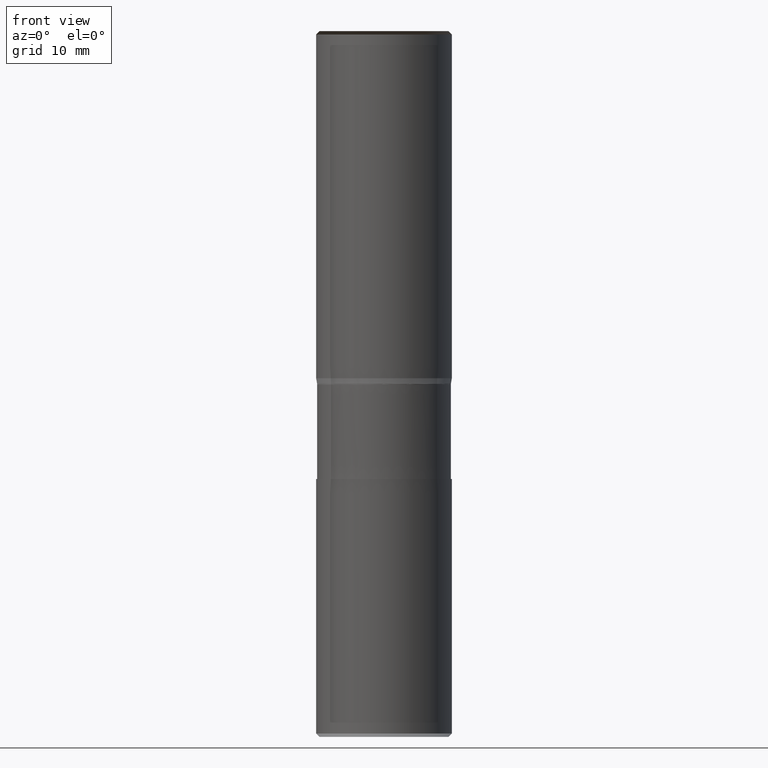
[diagram: clean part render]
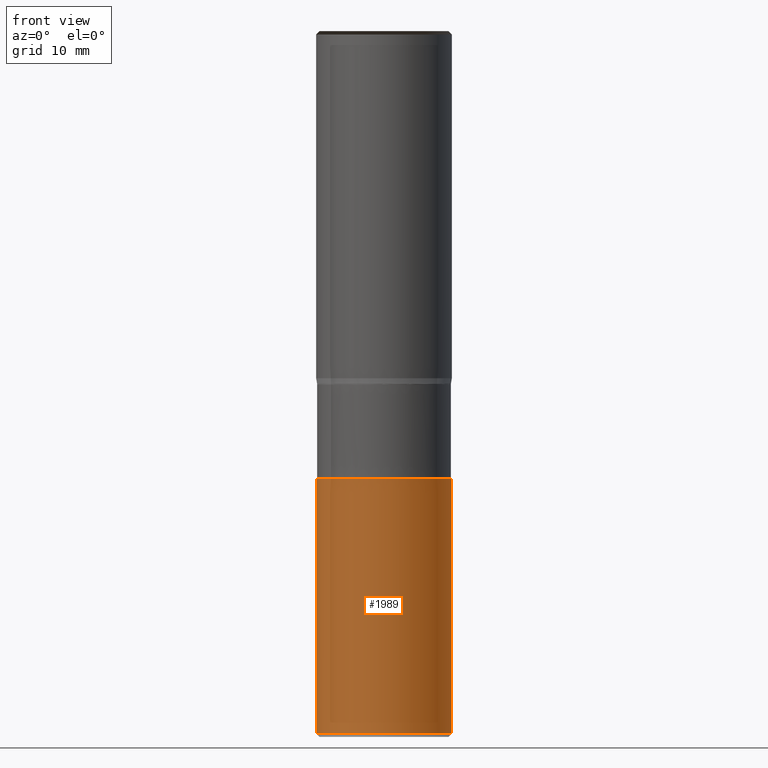
[diagram: same view with one face highlighted and labeled with its STEP entity id]
A machine part, front view. The second image highlights one B-rep face of the part: STEP entity #1989.
In plain terms, the highlighted face is a freeform B-spline surface patch.
Its self-contained STEP definition (entity closure, byte-faithful):
#1778=CARTESIAN_POINT('',(10.0,0.0,-52.350692272943));
#1782=CARTESIAN_POINT('',(-10.0,0.0,-52.350692272943));
#1783=CARTESIAN_POINT('',(10.0,0.0,-14.850692272943));
#1787=CARTESIAN_POINT('',(-10.0,0.0,-14.850692272943));
#1792=CARTESIAN_POINT('',(-10.0,-10.0,-52.350692272943));
#1793=CARTESIAN_POINT('',(0.0,-10.0,-52.350692272943));
#1794=CARTESIAN_POINT('',(10.0,-10.0,-52.350692272943));
#1795=CARTESIAN_POINT('',(-10.0,-10.0,-14.850692272943));
#1796=CARTESIAN_POINT('',(0.0,-10.0,-14.850692272943));
#1797=CARTESIAN_POINT('',(10.0,-10.0,-14.850692272943));
#1970=(
BOUNDED_SURFACE()
B_SPLINE_SURFACE(1,2,(
(#1782,#1792,#1793,#1794,#1778),
(#1787,#1795,#1796,#1797,#1783)
), .UNSPECIFIED.,.F.,.F.,.F.)
B_SPLINE_SURFACE_WITH_KNOTS((2,2),(3,2,3),(
0.0,1.0),(
0.0,0.5,1.0), .UNSPECIFIED.)
GEOMETRIC_REPRESENTATION_ITEM()
RATIONAL_B_SPLINE_SURFACE(((1.0,0.707106781187,1.0,0.707106781187,1.0),
(1.0,0.707106781187,1.0,0.707106781187,1.0)
))
REPRESENTATION_ITEM('')
SURFACE()
);
#1971=(
BOUNDED_CURVE()
B_SPLINE_CURVE(2,(#1778,#1794,#1793,#1792,#1782),.UNSPECIFIED.,.F.,.F.)
B_SPLINE_CURVE_WITH_KNOTS((3,2,3),
(0.0,0.5,1.0),.UNSPECIFIED.)
CURVE()
GEOMETRIC_REPRESENTATION_ITEM()
RATIONAL_B_SPLINE_CURVE((1.0,0.707106781187,1.0,0.707106781187,1.0))
REPRESENTATION_ITEM('')
);
#1972=(
BOUNDED_CURVE()
B_SPLINE_CURVE(1,(#1782,#1787),.UNSPECIFIED.,.F.,.F.)
B_SPLINE_CURVE_WITH_KNOTS((2,2),
(0.0,1.0),.UNSPECIFIED.)
CURVE()
GEOMETRIC_REPRESENTATION_ITEM()
RATIONAL_B_SPLINE_CURVE((1.0,1.0))
REPRESENTATION_ITEM('')
);
#1973=(
BOUNDED_CURVE()
B_SPLINE_CURVE(2,(#1787,#1795,#1796,#1797,#1783),.UNSPECIFIED.,.F.,.F.)
B_SPLINE_CURVE_WITH_KNOTS((3,2,3),
(0.0,0.5,1.0),.UNSPECIFIED.)
CURVE()
GEOMETRIC_REPRESENTATION_ITEM()
RATIONAL_B_SPLINE_CURVE((1.0,0.707106781187,1.0,0.707106781187,1.0))
REPRESENTATION_ITEM('')
);
#1974=(
BOUNDED_CURVE()
B_SPLINE_CURVE(1,(#1783,#1778),.UNSPECIFIED.,.F.,.F.)
B_SPLINE_CURVE_WITH_KNOTS((2,2),
(0.0,1.0),.UNSPECIFIED.)
CURVE()
GEOMETRIC_REPRESENTATION_ITEM()
RATIONAL_B_SPLINE_CURVE((1.0,1.0))
REPRESENTATION_ITEM('')
);
#1975=VERTEX_POINT('',#1778);
#1976=VERTEX_POINT('',#1782);
#1977=VERTEX_POINT('',#1783);
#1978=VERTEX_POINT('',#1787);
#1979=EDGE_CURVE('',#1975,#1976,#1971,.T.);
#1980=EDGE_CURVE('',#1976,#1978,#1972,.T.);
#1981=EDGE_CURVE('',#1978,#1977,#1973,.T.);
#1982=EDGE_CURVE('',#1977,#1975,#1974,.T.);
#1983=ORIENTED_EDGE('',*,*,#1979,.T.);
#1984=ORIENTED_EDGE('',*,*,#1980,.T.);
#1985=ORIENTED_EDGE('',*,*,#1981,.T.);
#1986=ORIENTED_EDGE('',*,*,#1982,.T.);
#1987=EDGE_LOOP('',(#1983,#1984,#1985,#1986));
#1988=FACE_OUTER_BOUND('',#1987,.T.);
#1989=ADVANCED_FACE('',(#1988),#1970,.T.);